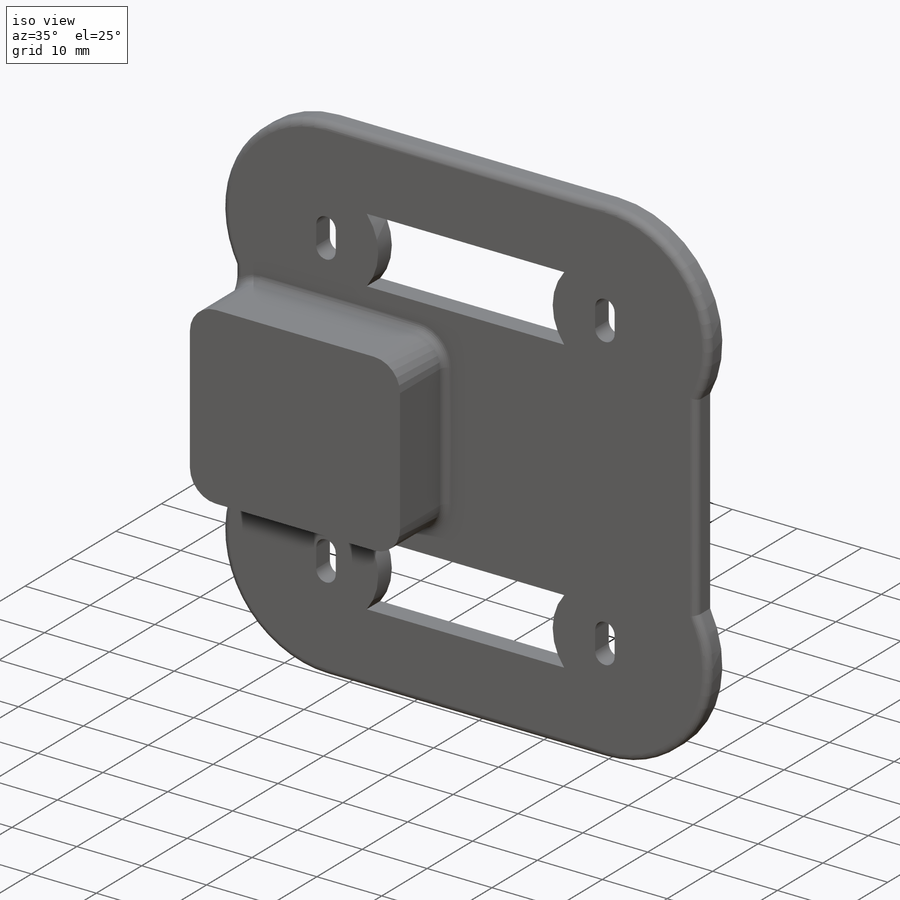
[diagram: iso view]
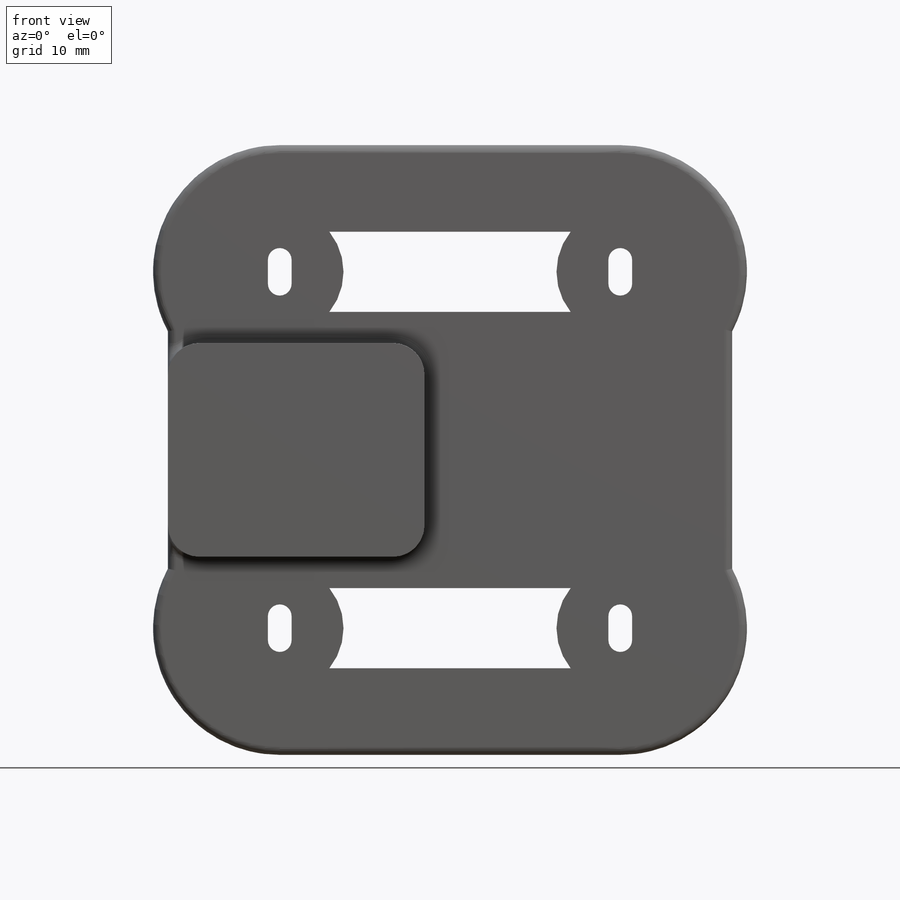
[diagram: front view]
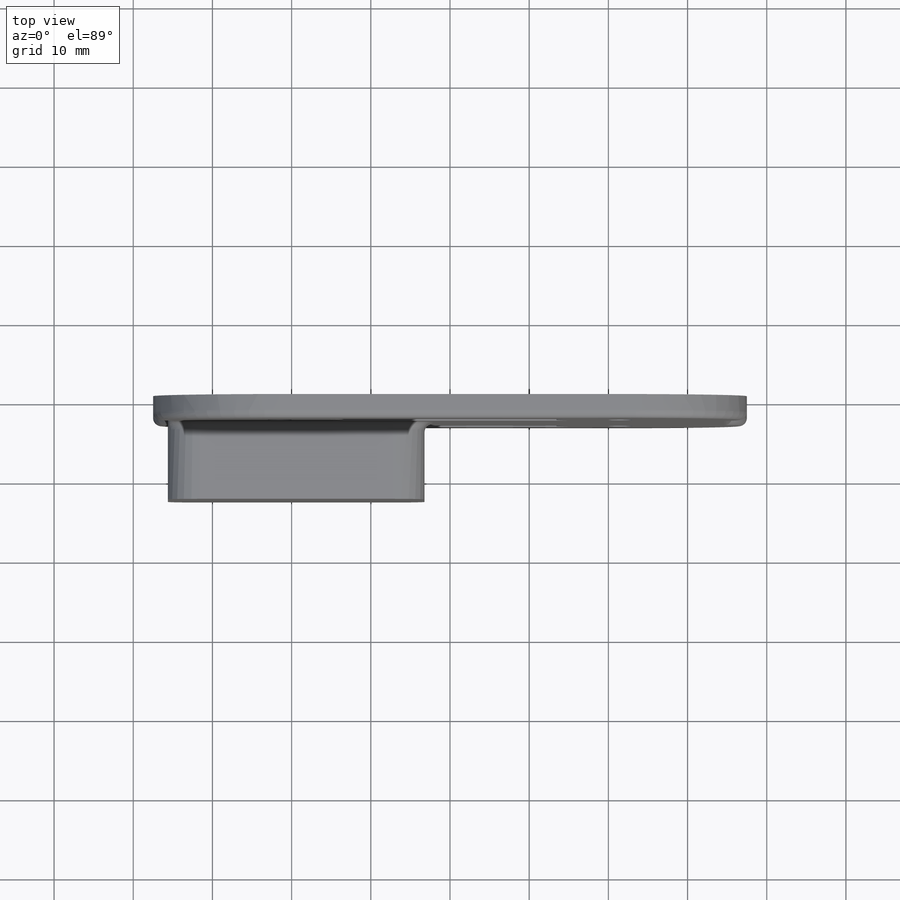
[diagram: top view]
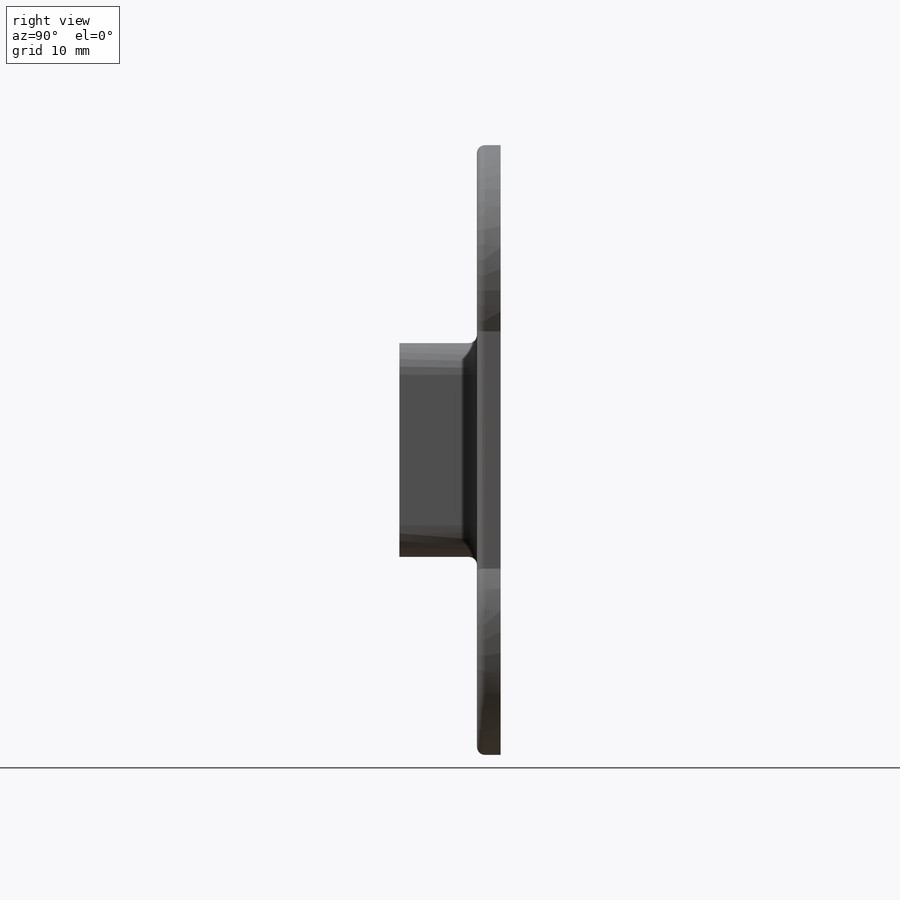
[diagram: right view]
SOLIDWORKS PART (.sldprt)
format: sldprt  version: not decoded by parser v0  size: 1,429,504 bytes
history: native  units: mm
features: sketch x14, fillet x8, cut_extrude x8, extrude x5, plane x2, material x1 (+13 scaffold rows collapsed)
feature tree (51):
  scaffold x13  (default folders/planes/origin — collapsed)
  material  "Material <not specified>"
  sketch  "Sketch1"  dims[c1.D1=19.0mm c1.D2=3.0mm c1.D3=3.0mm c2.D2=3.0mm c2.D3=3.0mm]
  extrude  "Boss-Body"  Depth=3mm
  sketch  "Sketch2"  dims[D1=5.6mm]
  extrude  "Boss-Stabilizer"  Depth=3mm
  fillet  "Fillet-Outside features"  Radius=1mm
  sketch  "Sketch3"
  plane  "PlaneCenter"
  sketch  "Sketch11"  dims[D1=3.0mm D2=2.0mm D3=3.0mm D4=3.0 D5=4.0]
  cut_extrude  "Cut-Extrude4"  [1 undecoded]
  fillet  "Fillet1"  Radius=3mm
  fillet  "Fillet2"  Radius=1mm
  sketch  "Sketch12"  dims[D3=4.0mm D1=8.0mm D2=6.0mm]
  extrude  "Boss-Extrude4"  Depth=8mm
  sketch  "Sketch13"  dims[c1.D1=~6.005589mm c1.D2=4.0mm c2.D1=2.0mm]
  cut_extrude  "Cut-Extrude6"  [1 undecoded]
  sketch  "Sketch14"  dims[D1=3.0mm]
  cut_extrude  "Cut-Extrude7"  Depth=10mm
  sketch  "Sketch17"  dims[D1=5.75mm]
  cut_extrude  "Cut-Extrude9"  Depth=2mm
  sketch  "Sketch18"  dims[D1=5.5mm]
  cut_extrude  "Cut-Extrude10"  Depth=2mm
  fillet  "Fillet-3mm-t"  Radius=3mm
  fillet  "Fillet4"  Radius=1mm
  fillet  "Fillet7"  Radius=0.5mm
  sketch  "Sketch19"  dims[c1.D1=~3.068487mm c1.D2=~3.068487mm c1.D3=6.0mm c2.D1=20.0mm c2.D2=20.0mm c2.D4=15.0mm c3.D1=27.0mm c3.D2=32.4mm]
  extrude  "Boss-Extrude5"  Depth=9.8mm
  sketch  "Sketch20"  dims[c1.D1=~4.602731mm c1.D2=~4.602731mm c1.D3=3.2mm c2.D1=20.0mm c2.D2=20.0mm]
  plane  "Plane1"  Offset=3mm
  cut_extrude  "Cut-Extrude11"  [1 undecoded]
  sketch  "Sketch21"  dims[D1=5.6mm D2=3.0mm]
  cut_extrude  "Cut-Extrude12"  Depth=4mm
  sketch  "Sketch22"
  extrude  "Boss-Extrude7"  Depth=0.6mm
  sketch  "Sketch23"  dims[D1=8.0mm]
  cut_extrude  "Cut-Extrude13"  [1 undecoded]
  fillet  "Fillet8"  Radius=4mm
  fillet  "Fillet9"  Radius=1mm
decode coverage: 29 of 35 modeling features carry decoded parameters
note: ~ marks probable driven/reference dimensions
note: 4 parameter values undecoded
summary: no parameter record found for 4 features
note: suppression state not decoded; provenance and decode notes live in map.json
